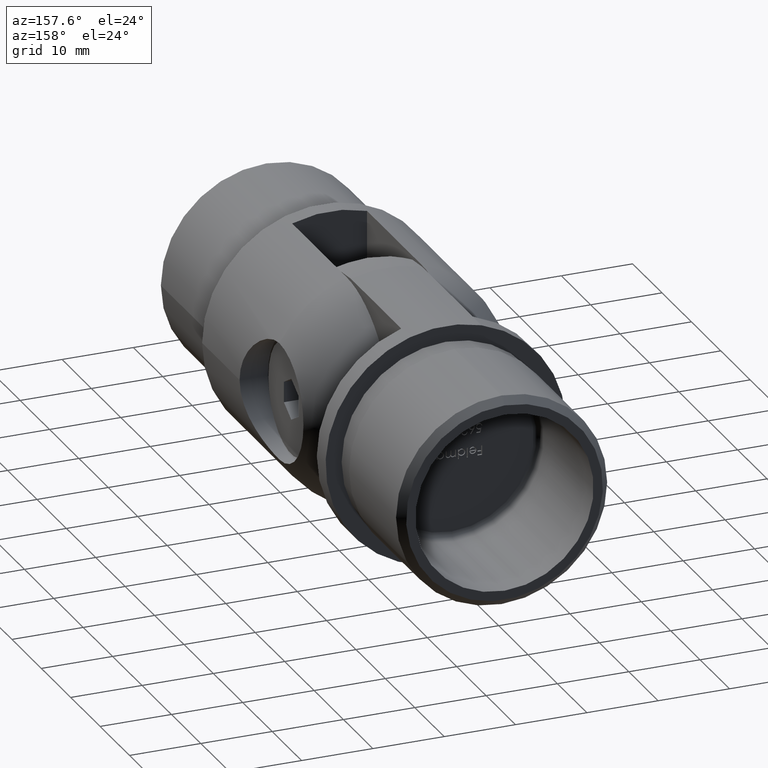
[diagram: clean part render]
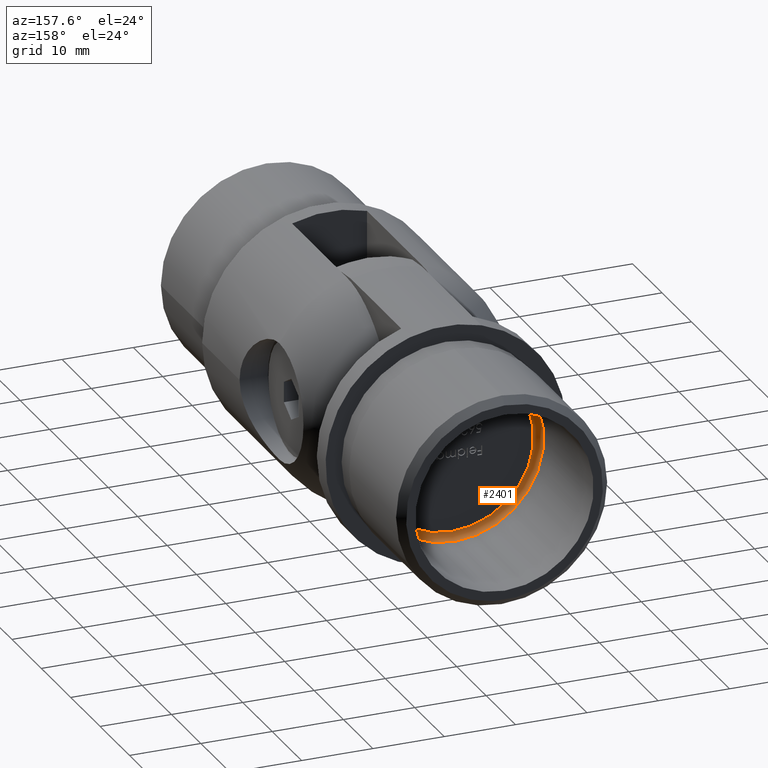
[diagram: same view with one face highlighted and labeled with its STEP entity id]
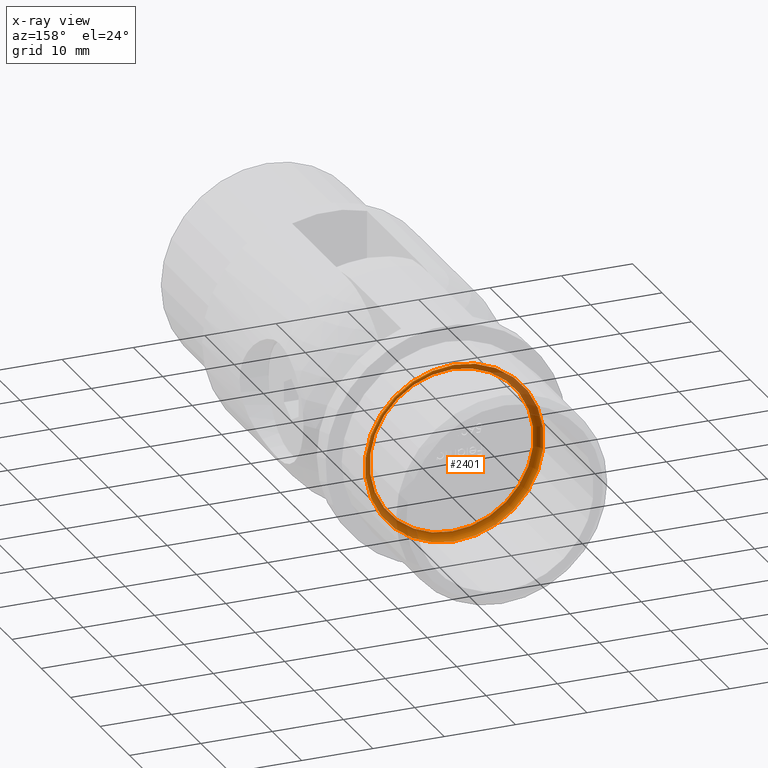
[diagram: x-ray of the same camera — body ghosted, the highlighted face saturated]
A machine part, auxiliary view. The second image highlights one B-rep face of the part: STEP entity #2401.
The next image is the same camera in x-ray: the body ghosted, the highlighted face saturated — about 23% of this face is hidden behind the body in this view.
In plain terms, the highlighted toroidal blend (fillet) surface has major radius 11.5 mm and minor (blend) radius 1 mm.
Its self-contained STEP definition (entity closure, byte-faithful):
#118 = DIRECTION ( 'NONE',  ( 0.0000000000000000000, 0.0000000000000000000, -1.000000000000000000 ) ) ;
#596 = EDGE_CURVE ( 'NONE', #6232, #6232, #15256, .T. ) ;
#857 = CIRCLE ( 'NONE', #5205, 11.50000000000000000 ) ;
#1342 = AXIS2_PLACEMENT_3D ( 'NONE', #14663, #2816, #14764 ) ;
#1469 = DIRECTION ( 'NONE',  ( -0.0000000000000000000, 1.000000000000000000, -0.0000000000000000000 ) ) ;
#2401 = ADVANCED_FACE ( 'NONE', ( #8515, #10010 ), #6870, .F. ) ;
#2565 = EDGE_LOOP ( 'NONE', ( #14092 ) ) ;
#2727 = DIRECTION ( 'NONE',  ( 0.0000000000000000000, 0.0000000000000000000, -1.000000000000000000 ) ) ;
#2816 = DIRECTION ( 'NONE',  ( 0.0000000000000000000, -1.000000000000000000, 0.0000000000000000000 ) ) ;
#3852 = CARTESIAN_POINT ( 'NONE',  ( 0.0000000000000000000, -3.000000000000001800, 0.0000000000000000000 ) ) ;
#5205 = AXIS2_PLACEMENT_3D ( 'NONE', #6365, #13312, #2727 ) ;
#5735 = AXIS2_PLACEMENT_3D ( 'NONE', #3852, #1469, #118 ) ;
#6232 = VERTEX_POINT ( 'NONE', #10981 ) ;
#6365 = CARTESIAN_POINT ( 'NONE',  ( 0.0000000000000000000, -2.000000000000001800, 0.0000000000000000000 ) ) ;
#6543 = EDGE_CURVE ( 'NONE', #9160, #9160, #857, .T. ) ;
#6707 = ORIENTED_EDGE ( 'NONE', *, *, #6543, .F. ) ;
#6870 = TOROIDAL_SURFACE ( 'NONE', #1342, 11.50000000000000000, 1.000000000000000000 ) ;
#7469 = CARTESIAN_POINT ( 'NONE',  ( 0.0000000000000000000, -2.000000000000001800, -11.50000000000000000 ) ) ;
#8515 = FACE_OUTER_BOUND ( 'NONE', #2565, .T. ) ;
#9160 = VERTEX_POINT ( 'NONE', #7469 ) ;
#10010 = FACE_OUTER_BOUND ( 'NONE', #10569, .T. ) ;
#10569 = EDGE_LOOP ( 'NONE', ( #6707 ) ) ;
#10981 = CARTESIAN_POINT ( 'NONE',  ( 0.0000000000000000000, -3.000000000000001800, -12.50000000000000000 ) ) ;
#13312 = DIRECTION ( 'NONE',  ( 0.0000000000000000000, -1.000000000000000000, 0.0000000000000000000 ) ) ;
#14092 = ORIENTED_EDGE ( 'NONE', *, *, #596, .F. ) ;
#14663 = CARTESIAN_POINT ( 'NONE',  ( 0.0000000000000000000, -3.000000000000001800, 0.0000000000000000000 ) ) ;
#14764 = DIRECTION ( 'NONE',  ( 0.0000000000000000000, 0.0000000000000000000, -1.000000000000000000 ) ) ;
#15256 = CIRCLE ( 'NONE', #5735, 12.50000000000000000 ) ;